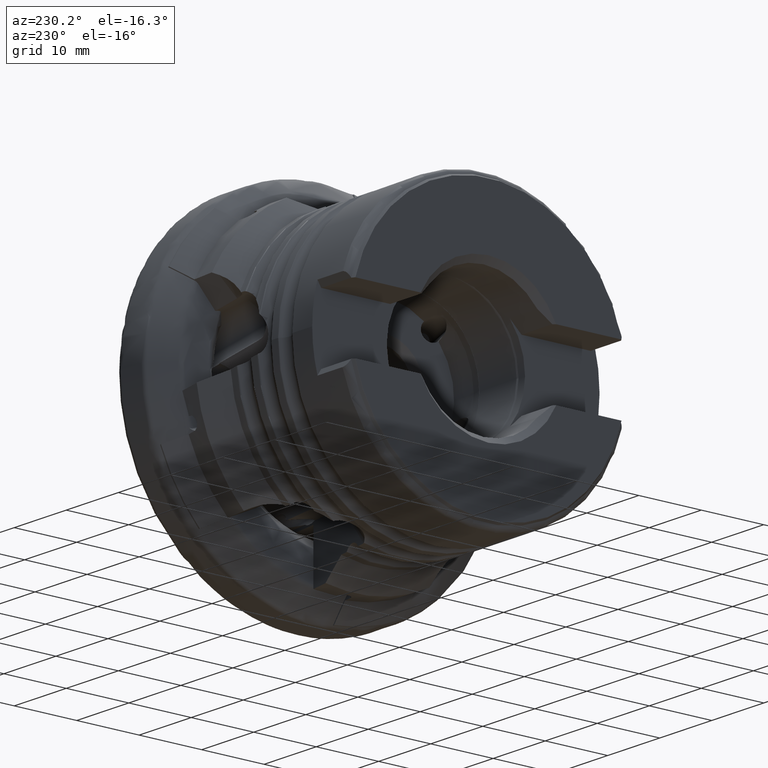
[diagram: clean part render]
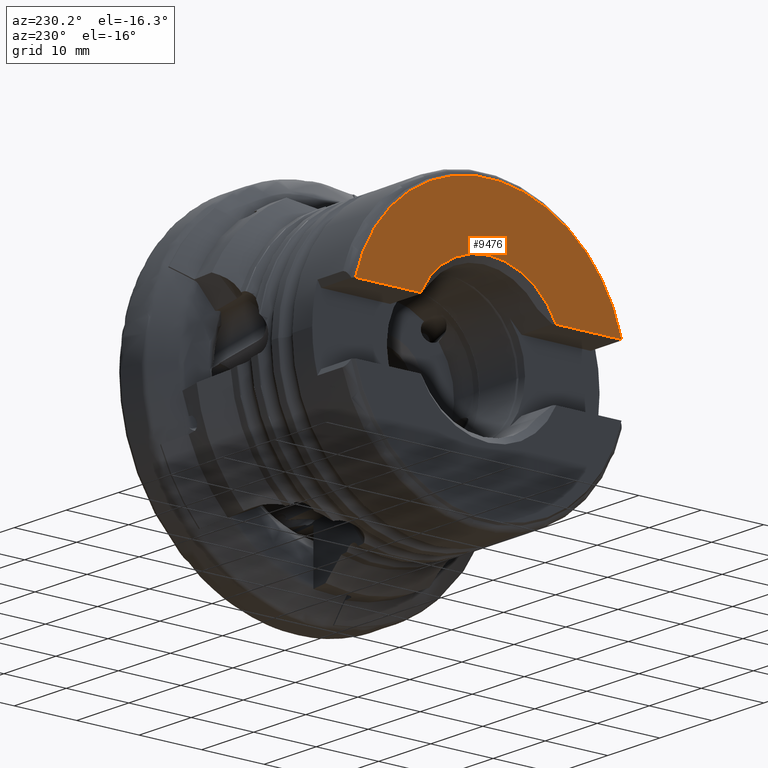
[diagram: same view with one face highlighted and labeled with its STEP entity id]
A machine part, auxiliary view. The second image highlights one B-rep face of the part: STEP entity #9476.
In plain terms, the highlighted planar face has unit normal (-1, -0, 0).
Its self-contained STEP definition (entity closure, byte-faithful):
#1007 = CARTESIAN_POINT ( 'NONE',  ( -39.10000000000000100, -4.788368984666153600E-015, 0.0000000000000000000 ) ) ;
#1287 = DIRECTION ( 'NONE',  ( 1.224646799147353700E-016, -1.000000000000000000, 0.0000000000000000000 ) ) ;
#1495 = LINE ( 'NONE', #4116, #7723 ) ;
#1688 = EDGE_LOOP ( 'NONE', ( #7931, #10071, #9774, #5924 ) ) ;
#1754 = VERTEX_POINT ( 'NONE', #4481 ) ;
#1837 = CARTESIAN_POINT ( 'NONE',  ( -39.10000000000000100, -21.29663569925563500, 5.200000000000006400 ) ) ;
#2217 = EDGE_CURVE ( 'NONE', #3630, #5090, #9665, .T. ) ;
#3630 = VERTEX_POINT ( 'NONE', #7909 ) ;
#3666 = CARTESIAN_POINT ( 'NONE',  ( -39.10000000000001600, -10.84253775644801400, 5.200000000000006400 ) ) ;
#3781 = DIRECTION ( 'NONE',  ( 1.000000000000000000, 1.224646799147353700E-016, -0.0000000000000000000 ) ) ;
#4019 = AXIS2_PLACEMENT_3D ( 'NONE', #1007, #7344, #1287 ) ;
#4116 = CARTESIAN_POINT ( 'NONE',  ( -39.09999999999999400, -54.99999999999999300, 5.200000000000006400 ) ) ;
#4443 = CARTESIAN_POINT ( 'NONE',  ( -39.10000000000000100, -6.979751427917642700E-015, 0.0000000000000000000 ) ) ;
#4481 = CARTESIAN_POINT ( 'NONE',  ( -39.10000000000000100, 21.29663569925563100, 5.200000000000006400 ) ) ;
#4580 = VERTEX_POINT ( 'NONE', #1837 ) ;
#4712 = FACE_OUTER_BOUND ( 'NONE', #1688, .T. ) ;
#4788 = EDGE_CURVE ( 'NONE', #1754, #4580, #6746, .T. ) ;
#4867 = CARTESIAN_POINT ( 'NONE',  ( -39.09999999999999400, -54.99999999999999300, 5.200000000000006400 ) ) ;
#4882 = EDGE_CURVE ( 'NONE', #1754, #3630, #10582, .T. ) ;
#4945 = CARTESIAN_POINT ( 'NONE',  ( -39.10000000000000100, -3.487816653940823400E-015, 0.0000000000000000000 ) ) ;
#5090 = VERTEX_POINT ( 'NONE', #3666 ) ;
#5199 = DIRECTION ( 'NONE',  ( 0.0000000000000000000, -1.000000000000000000, -8.881784197001252300E-016 ) ) ;
#5676 = DIRECTION ( 'NONE',  ( 1.224646799147353700E-016, -1.000000000000000000, 0.0000000000000000000 ) ) ;
#5924 = ORIENTED_EDGE ( 'NONE', *, *, #4788, .F. ) ;
#6198 = PLANE ( 'NONE',  #4019 ) ;
#6746 = CIRCLE ( 'NONE', #8218, 21.92228756555322600 ) ;
#7344 = DIRECTION ( 'NONE',  ( -1.000000000000000000, -1.224646799147353700E-016, 0.0000000000000000000 ) ) ;
#7723 = VECTOR ( 'NONE', #5676, 1000.000000000000000 ) ;
#7909 = CARTESIAN_POINT ( 'NONE',  ( -39.10000000000000100, 10.84253775644797500, 5.200000000000006400 ) ) ;
#7931 = ORIENTED_EDGE ( 'NONE', *, *, #4882, .T. ) ;
#8218 = AXIS2_PLACEMENT_3D ( 'NONE', #4945, #9795, #9104 ) ;
#8656 = VECTOR ( 'NONE', #9712, 1000.000000000000000 ) ;
#9104 = DIRECTION ( 'NONE',  ( 0.0000000000000000000, -1.000000000000000000, 0.0000000000000000000 ) ) ;
#9137 = AXIS2_PLACEMENT_3D ( 'NONE', #4443, #3781, #5199 ) ;
#9476 = ADVANCED_FACE ( 'NONE', ( #4712 ), #6198, .T. ) ;
#9665 = CIRCLE ( 'NONE', #9137, 12.02500000000000400 ) ;
#9712 = DIRECTION ( 'NONE',  ( 1.224646799147353700E-016, -1.000000000000000000, 0.0000000000000000000 ) ) ;
#9774 = ORIENTED_EDGE ( 'NONE', *, *, #10524, .T. ) ;
#9795 = DIRECTION ( 'NONE',  ( 1.000000000000000000, 1.224646799147353700E-016, -0.0000000000000000000 ) ) ;
#10071 = ORIENTED_EDGE ( 'NONE', *, *, #2217, .T. ) ;
#10524 = EDGE_CURVE ( 'NONE', #5090, #4580, #1495, .T. ) ;
#10582 = LINE ( 'NONE', #4867, #8656 ) ;